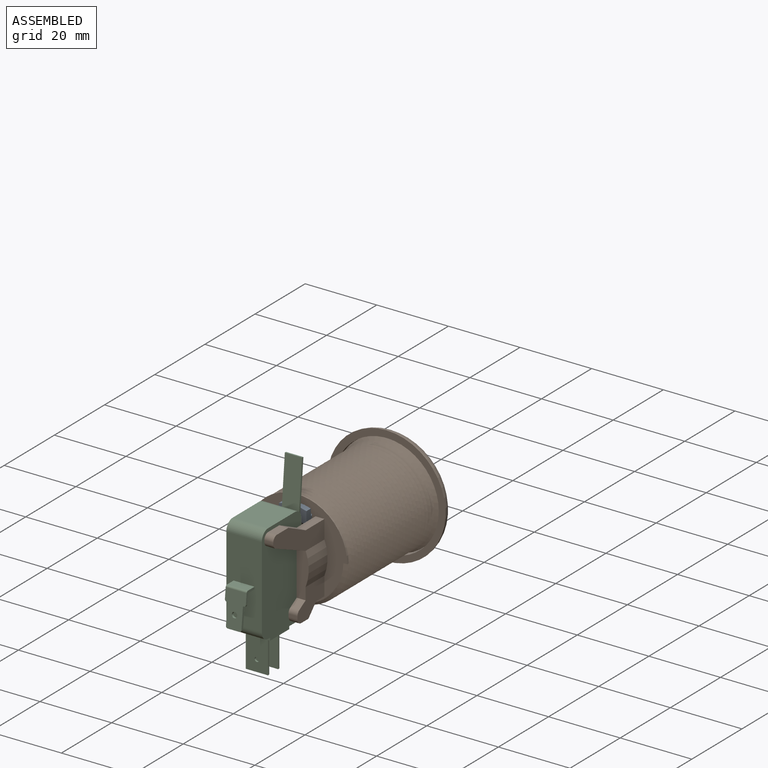
[diagram: assembled view]
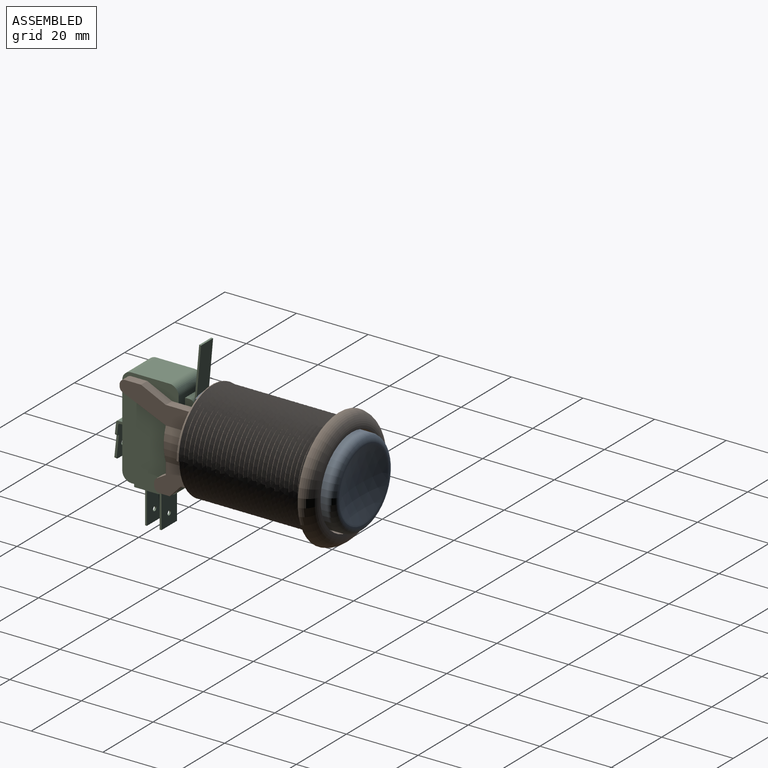
[diagram: assembled view, second angle]
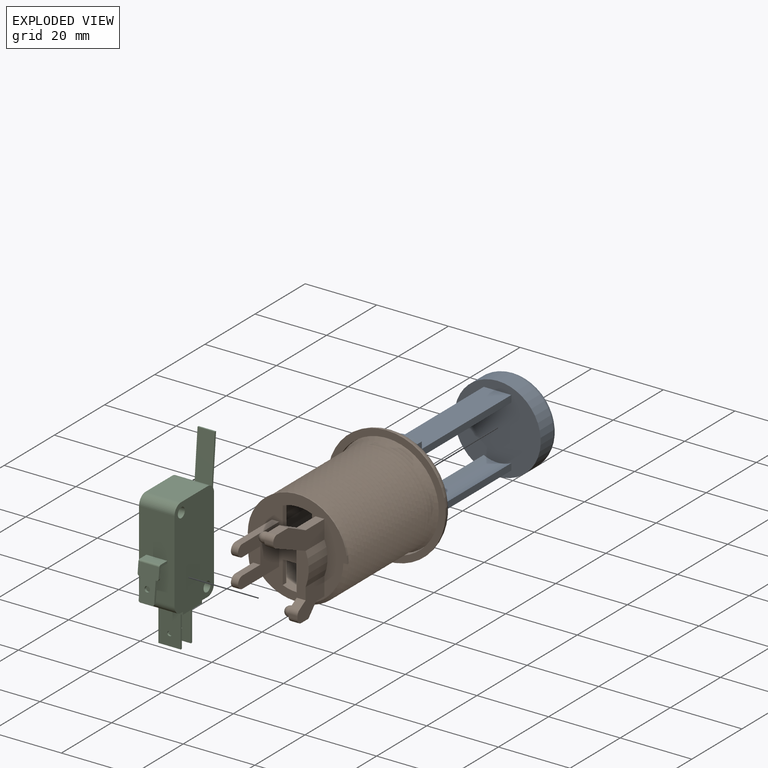
[diagram: exploded view]
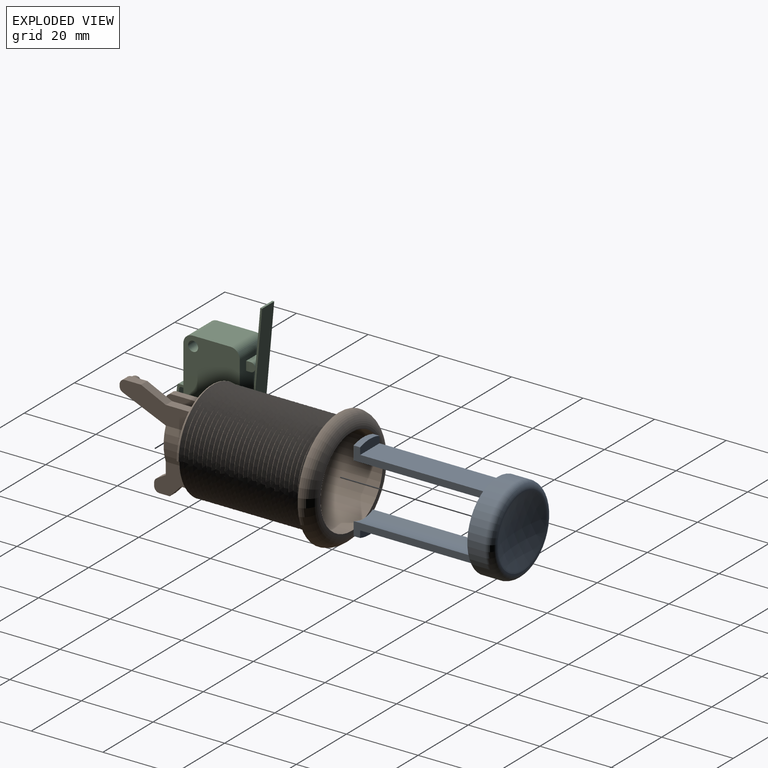
[diagram: exploded view, second angle]
ASSEMBLY  parts=3 mates=2
PART A: 18 faces, bbox 26.1x45.6x26.1 mm
  f0: plane 24.13x24.13mm, normal (0,-1,0), area 437.9mm2, adj f1,f5,f6,f7,f10,f11,f12,f14
  f1: cylinder r=12.06mm len=24.13mm, axis (0,-1,0), area 373.5mm2, adj f0,f3
  f2: sphere r=37.39mm, area 291.6mm2, adj f3
  f3: torus R=10.06mm, axis (0,1,0), area 255.7mm2, adj f1,f2
  f4: cylinder r=12.06mm len=7.7mm, axis (0,1,0), area 13.9mm2, adj f5,f7,f8,f17
  f5: plane 37.5x3.78mm, normal (1,0,0), area 73.4mm2, adj f0,f4,f6,f8,f16,f17
  f6: cylinder r=8.56mm len=37.5mm, axis (0,1,0), area 299.5mm2, adj f0,f5,f7,f8
  f7: plane 37.5x3.78mm, normal (-1,0,0), area 73.4mm2, adj f0,f4,f6,f8,f16,f17
  f8: plane 7.7x4.42mm, normal (0,-1,0), area 27.6mm2, adj f4,f5,f6,f7
  f9: cylinder r=12.06mm len=7.7mm, axis (0,1,0), area 13.9mm2, adj f10,f12,f13,f15
  f10: plane 37.5x3.78mm, normal (-1,0,0), area 74.4mm2, adj f0,f9,f11,f13,f14,f15
  f11: cylinder r=8.56mm len=37.5mm, axis (0,1,0), area 299.5mm2, adj f0,f10,f12,f13
  f12: plane 37.5x3.78mm, normal (1,0,0), area 74.4mm2, adj f0,f9,f11,f13,f14,f15
  f13: plane 7.7x4.42mm, normal (0,-1,0), area 27.6mm2, adj f9,f10,f11,f12
  f14: plane 35.66x7.7mm, normal (0,0,1), area 274.6mm2, adj f0,f10,f12,f15
  f15: plane 7.7x2.52mm, normal (0,1,0.03), area 17.8mm2, adj f9,f10,f12,f14
  f16: plane 35.66x7.7mm, normal (0,0,-1), area 274.6mm2, adj f0,f5,f7,f17
  f17: plane 7.7x2.55mm, normal (0,1,-0.03), area 18mm2, adj f4,f5,f7,f16
PART B: 64 faces, bbox 36.6x60.3x36.6 mm
  f0: plane 20.4x8.44mm, normal (1,0,0), area 100.3mm2, adj f5,f6,f34,f36,f51,f52,f55,f58
  f1: plane 11.35x3.36mm, normal (0,-1,0), area 19.7mm2, adj f3,f31,f41,f42,f45,f46
  f2: plane 7.5x0mm, normal (1,0,0), area 0mm2, adj f32,f44
  f3: plane 16.4x8mm, normal (1,0,0), area 88.5mm2, adj f1,f5,f30,f42,f44,f49,f50
  f4: plane 26x20.4mm, normal (-1,0,0), area 217.2mm2, adj f5,f7,f34,f35,f36,f37,f39,f51
  f5: plane 28.6x27.92mm, normal (0,-1,0), area 378.4mm2, adj f0,f3,f4,f6,f14,f15,f16,f17
  f6: cylinder r=12.52mm len=9.12mm, axis (0,1,0), area 70mm2, adj f0,f5,f7,f33
  f7: plane 12.49x3.36mm, normal (0,-1,0), area 36.5mm2, adj f4,f6,f33,f53,f55
  f8: plane 33.15x33.15mm, normal (0,-1,0), area 186.5mm2, adj f10,f11,f12,f13
  f9: plane 25.42x25.42mm, normal (0,1,0), area 20.7mm2, adj f10,f20
  f10: torus R=12.71mm, axis (0,-1,0), area 542.7mm2, adj f8,f9
  f11: plane 1.86x1.77mm, normal (0.31,0,-0.95), area 1.7mm2, adj f8,f12,f13,f16,f17,f18
  f12: bspline ~29.14x29.14mm, area 73.6mm2, adj f8,f11,f13,f18
  f13: bspline ~29.33x29.33mm, area 26.7mm2, adj f8,f11,f12
  f14: plane 1.1x0.65mm, normal (0,0,-1), area 0.4mm2, adj f5,f15,f17,f19
  f15: bspline ~27.98x19.88mm, area 8.2mm2, adj f5,f14,f16,f19
  f16: bspline ~36.7x27.59mm, area 2815.8mm2, adj f5,f11,f15,f17
  f17: bspline ~36.96x27.59mm, area 3151.4mm2, adj f5,f11,f14,f16,f18
  f18: bspline ~31.31x31.31mm, area 77.3mm2, adj f11,f12,f17
  f19: cylinder r=13.97mm len=27.22mm, axis (0,1,0), area 11.2mm2, adj f5,f14,f15
  f20: cylinder r=12.45mm len=37.7mm, axis (0,1,0), area 2948.3mm2, adj f9,f21
  f21: plane 24.89x24.89mm, normal (0,1,0), area 372.9mm2, adj f20,f22,f23,f24,f25,f26,f27,f28
  f22: cylinder r=10.92mm len=8.15mm, axis (0,-1,0), area 11.8mm2, adj f5,f21,f23,f25
  f23: plane 6.45x1.41mm, normal (-1,0,0), area 9.1mm2, adj f5,f21,f22,f24
  f24: plane 8.15x1.41mm, normal (0,0,1), area 11.5mm2, adj f5,f21,f23,f25
  f25: plane 6.45x1.41mm, normal (1,0,0), area 9.1mm2, adj f5,f21,f22,f24
  f26: plane 6.45x1.41mm, normal (-1,0,0), area 9.1mm2, adj f5,f21,f27,f29
  f27: cylinder r=10.92mm len=8.15mm, axis (0,-1,0), area 11.8mm2, adj f5,f21,f26,f28
  f28: plane 6.45x1.41mm, normal (1,0,0), area 9.1mm2, adj f5,f21,f27,f29
  f29: plane 8.15x1.41mm, normal (0,0,-1), area 11.5mm2, adj f5,f21,f26,f28
  f30: plane 14.65x2mm, normal (0,0,1), area 29.3mm2, adj f3,f5,f31,f41,f49
  f31: cylinder r=12.52mm len=11.35mm, axis (0,1,0), area 88.3mm2, adj f1,f5,f30,f32
  f32: plane 7.5x2mm, normal (0,0,-1), area 15mm2, adj f2,f5,f31,f43
  f33: plane 10.75x8.44mm, normal (1,0,0), area 60.2mm2, adj f5,f6,f7,f35,f53,f54,f56,f57
  f34: plane 4.49x2.5mm, normal (0,0,1), area 11.2mm2, adj f0,f4,f52,f58
  f35: plane 2.86x2.5mm, normal (0,0,-1), area 7.2mm2, adj f4,f33,f57,f61
  f36: plane 2.5x0.43mm, normal (0,-1,0), area 1.1mm2, adj f0,f4,f58,f59
  f37: cylinder r=1.37mm len=2.73mm, axis (1,0,0), area 9.8mm2, adj f4,f63
  f38: plane 0.01x0.01mm, normal (-1,0,0), area 0mm2, adj f63
  f39: cylinder r=1.37mm len=2.73mm, axis (1,0,0), area 9.8mm2, adj f4,f62
  f40: plane 0.01x0.01mm, normal (-1,0,0), area 0mm2, adj f62
  f41: plane 8.9x3.35mm, normal (-1,0,0), area 28.5mm2, adj f1,f30,f42,f49,f50
  f42: plane 7.15x2mm, normal (0,0,-1), area 14.3mm2, adj f1,f3,f41,f50
  f43: plane 7.15x2mm, normal (0,0,-1), area 14.3mm2, adj f32,f44,f46,f48
  f44: plane 16.4x3.35mm, normal (1,0,0), area 53.6mm2, adj f2,f3,f5,f43,f45,f47,f48
  f45: plane 7.15x2mm, normal (0,0,1), area 14.3mm2, adj f1,f44,f46,f47
  f46: plane 8.9x3.35mm, normal (-1,0,0), area 28.5mm2, adj f1,f43,f45,f47,f48
  f47: cylinder r=1.75mm len=2mm, axis (-1,0,0), area 5.3mm2, adj f44,f45,f46,f48
  f48: cylinder r=1.75mm len=2mm, axis (1,0,0), area 5.3mm2, adj f43,f44,f46,f47
  f49: cylinder r=1.75mm len=2mm, axis (-1,0,0), area 5.3mm2, adj f3,f30,f41,f50
  f50: cylinder r=1.75mm len=2mm, axis (1,0,0), area 5.3mm2, adj f3,f41,f42,f49
  f51: plane 7.5x2.5mm, normal (0,0,1), area 18.8mm2, adj f0,f4,f5,f52
  f52: plane 6.91x3.25mm, normal (0,0.43,0.9), area 19.1mm2, adj f0,f4,f34,f51
  f53: plane 2.52x2.5mm, normal (0,-0.51,0.86), area 7.3mm2, adj f4,f7,f33,f60
  f54: plane 2.5x0.78mm, normal (0,-1,0), area 1.9mm2, adj f4,f33,f60,f61
  f55: plane 11.99x5.13mm, normal (0,-0.39,-0.92), area 32.6mm2, adj f0,f4,f7,f59
  f56: plane 3.33x2.5mm, normal (0,0,-1), area 8.3mm2, adj f4,f5,f33,f57
  f57: plane 3.25x3.06mm, normal (0,0.73,-0.69), area 11.2mm2, adj f4,f33,f35,f56
  f58: cylinder r=1.5mm len=2.5mm, axis (-1,0,0), area 5.9mm2, adj f0,f4,f34,f36
  f59: cylinder r=1.5mm len=2.5mm, axis (1,0,0), area 4.4mm2, adj f0,f4,f36,f55
  f60: cylinder r=1.5mm len=2.5mm, axis (1,0,0), area 3.9mm2, adj f4,f33,f53,f54
  f61: cylinder r=1.5mm len=2.5mm, axis (1,0,0), area 5.9mm2, adj f4,f33,f35,f54
  f62: torus R=0.01mm, axis (-1,0,0), area 11.7mm2, adj f39,f40
  f63: torus R=0.01mm, axis (-1,0,0), area 11.7mm2, adj f37,f38
PART C: 60 faces, bbox 49.2x24.4x9.9 mm
  f0: cylinder r=0.51mm len=0.69mm, axis (-0.11,0.99,0), area 0.5mm2, adj f3,f4,f49,f56
  f1: cylinder r=0.51mm len=5.84mm, axis (0,0,-1), area 4.3mm2, adj f4,f49,f50,f52
  f2: cylinder r=0.51mm len=0.69mm, axis (0.11,-0.99,0), area 0.5mm2, adj f3,f4,f50,f53
  f3: plane 9.71x5.84mm, normal (0.11,-0.99,0), area 45.3mm2, adj f0,f2,f41,f42,f43,f48,f49,f50
  f4: plane 9.14x5.84mm, normal (-0.11,0.99,0), area 42mm2, adj f0,f1,f2,f41,f42,f48,f49,f50
  f5: plane 2.54x2.54mm, normal (0,0,1), area 5.7mm2, adj f7,f8,f9,f38
  f6: plane 2.54x2.54mm, normal (0,0,-1), area 5.7mm2, adj f7,f8,f9,f38
  f7: plane 4.83x1.27mm, normal (-1,0,0), area 6.1mm2, adj f5,f6,f8,f38
  f8: cylinder r=1.27mm len=4.83mm, axis (0,0,1), area 19.3mm2, adj f5,f6,f7,f9
  f9: plane 4.83x1.27mm, normal (1,0,0), area 6.1mm2, adj f5,f6,f8,f38
  f10: plane 27.59x4.45mm, normal (0,0,1), area 14.8mm2, adj f12,f13,f14,f15,f16,f38,f44,f45
  f11: plane 27.59x4.45mm, normal (0,0,-1), area 14.8mm2, adj f12,f13,f14,f15,f16,f38,f44,f45
  f12: plane 4.83x0.51mm, normal (1,0.09,0), area 2.5mm2, adj f10,f11,f13,f16
  f13: plane 26.62x4.83mm, normal (0.09,-1,0), area 129.1mm2, adj f10,f11,f12,f44
  f14: plane 4.83x1.06mm, normal (1,0,0), area 5.1mm2, adj f10,f11,f38,f44
  f15: plane 4.83x1.52mm, normal (-1,0,0), area 7.4mm2, adj f10,f11,f38,f45
  f16: plane 27.08x4.83mm, normal (-0.09,1,0), area 131.3mm2, adj f10,f11,f12,f45
  f17: plane 9.91x0.51mm, normal (0,0,1), area 5mm2, adj f19,f20,f21,f34
  f18: plane 9.91x0.51mm, normal (0,0,-1), area 5mm2, adj f19,f20,f21,f34
  f19: plane 9.91x6.21mm, normal (0,1,0), area 60.2mm2, adj f17,f18,f21,f34,f47
  f20: plane 9.91x6.21mm, normal (0,-1,0), area 60.2mm2, adj f17,f18,f21,f34,f47
  f21: plane 6.21x0.51mm, normal (-1,0,0), area 3.2mm2, adj f17,f18,f19,f20
  f22: plane 9.91x0.51mm, normal (0,0,1), area 5mm2, adj f24,f25,f26,f34
  f23: plane 9.91x0.51mm, normal (0,0,-1), area 5mm2, adj f24,f25,f26,f34
  f24: plane 9.91x6.21mm, normal (0,1,0), area 60.2mm2, adj f22,f23,f26,f34,f46
  f25: plane 9.91x6.21mm, normal (0,-1,0), area 60.2mm2, adj f22,f23,f26,f34,f46
  f26: plane 6.21x0.51mm, normal (-1,0,0), area 3.2mm2, adj f22,f23,f24,f25
  f27: plane 28.7x15.75mm, normal (0,0,1), area 428mm2, adj f29,f30,f31,f32,f33,f34,f35,f36
  f28: plane 28.7x15.75mm, normal (0,0,-1), area 428mm2, adj f29,f30,f31,f32,f33,f34,f35,f36
  f29: cylinder r=2.54mm len=9.91mm, axis (0,0,1), area 39.5mm2, adj f27,f28,f30,f40
  f30: plane 22.86x9.91mm, normal (0,-1,0), area 222.8mm2, adj f27,f28,f29,f31,f49,f50,f51,f52
  f31: cylinder r=2.54mm len=9.91mm, axis (0,0,1), area 39.5mm2, adj f27,f28,f30,f32
  f32: plane 9.91x0.76mm, normal (-1,0,0), area 7.6mm2, adj f27,f28,f31,f33
  f33: plane 9.91x0.76mm, normal (0,-1,0), area 7.6mm2, adj f27,f28,f32,f34
  f34: plane 9.91x7.62mm, normal (-1,0,0), area 69.2mm2, adj f17,f18,f19,f20,f22,f23,f24,f25
  f35: plane 9.91x0.76mm, normal (0,1,0), area 7.6mm2, adj f27,f28,f34,f36
  f36: plane 9.91x2.29mm, normal (-1,0,0), area 22.7mm2, adj f27,f28,f35,f37
  f37: cylinder r=2.54mm len=9.91mm, axis (0,0,1), area 39.5mm2, adj f27,f28,f36,f38
  f38: plane 22.86x9.91mm, normal (0,1,0), area 211.8mm2, adj f5,f6,f7,f9,f10,f11,f14,f15
  f39: cylinder r=2.54mm len=9.91mm, axis (0,0,1), area 39.5mm2, adj f27,f28,f38,f40
  f40: plane 10.67x9.91mm, normal (1,0,0), area 105.7mm2, adj f27,f28,f29,f39
  f41: cylinder r=0.51mm len=0.69mm, axis (0.11,-0.99,0), area 0.5mm2, adj f3,f4,f48,f55
  f42: cylinder r=0.51mm len=0.69mm, axis (0.11,-0.99,0), area 0.5mm2, adj f3,f4,f48,f54
  f43: cylinder r=0.51mm len=5.84mm, axis (0,0,1), area 4.3mm2, adj f3,f49,f50,f51
  f44: cylinder r=0.51mm len=4.83mm, axis (0,0,-1), area 3.6mm2, adj f10,f11,f13,f14
  f45: cylinder r=0.51mm len=4.83mm, axis (0,0,1), area 3.6mm2, adj f10,f11,f15,f16
  f46: cylinder r=0.64mm len=1.27mm, axis (0,1,0), area 2mm2, adj f24,f25
  f47: cylinder r=0.64mm len=1.27mm, axis (0,1,0), area 2mm2, adj f19,f20
  f48: plane 3.3x0.63mm, normal (-0.99,-0.11,0), area 2.1mm2, adj f3,f4,f41,f42
  f49: plane 3.47x3.41mm, normal (0,0,-1), area 3.7mm2, adj f0,f1,f3,f4,f30,f43,f51,f52
  f50: plane 3.47x3.41mm, normal (0,0,1), area 3.7mm2, adj f1,f2,f3,f4,f30,f43,f51,f52
  f51: plane 5.84x2.65mm, normal (1,0,0), area 15.5mm2, adj f30,f43,f49,f50
  f52: plane 5.84x2.08mm, normal (-1,0,0), area 12.2mm2, adj f1,f30,f49,f50
  f53: plane 0.63x0.25mm, normal (-0.99,-0.11,0), area 0.2mm2, adj f2,f3,f4,f54
  f54: plane 5.88x1.26mm, normal (0,0,1), area 3.7mm2, adj f3,f4,f42,f53
  f55: plane 5.88x1.26mm, normal (0,0,-1), area 3.7mm2, adj f3,f4,f41,f56
  f56: plane 0.63x0.25mm, normal (-0.99,-0.11,0), area 0.2mm2, adj f0,f3,f4,f55
  f57: cylinder r=0.76mm len=1.58mm, axis (-0.11,0.99,0), area 3mm2, adj f3,f4
  f58: cylinder r=1.4mm len=9.91mm, axis (0,0,-1), area 86.9mm2, adj f27,f28
  f59: cylinder r=1.4mm len=9.91mm, axis (0,0,-1), area 86.9mm2, adj f27,f28
PLACE A t=(-6.97,-8.91,-3.16)mm
PLACE B rot(axis=(-0.21,0.74,-0.64),0deg) t=(-6.97,-8.97,-3.18)mm
PLACE C rot(axis=(0,-1,0),90deg) t=(-6.85,-58.05,-3.19)mm
MATE fastened A.f4 <-> B.f10  axis (0,-1,0) through (-6.97,-8.91,-3.18)mm
MATE fastened C.f59 <-> B.f39  axis (1,0,0) through (-1.9,-63.21,8.11)mm
